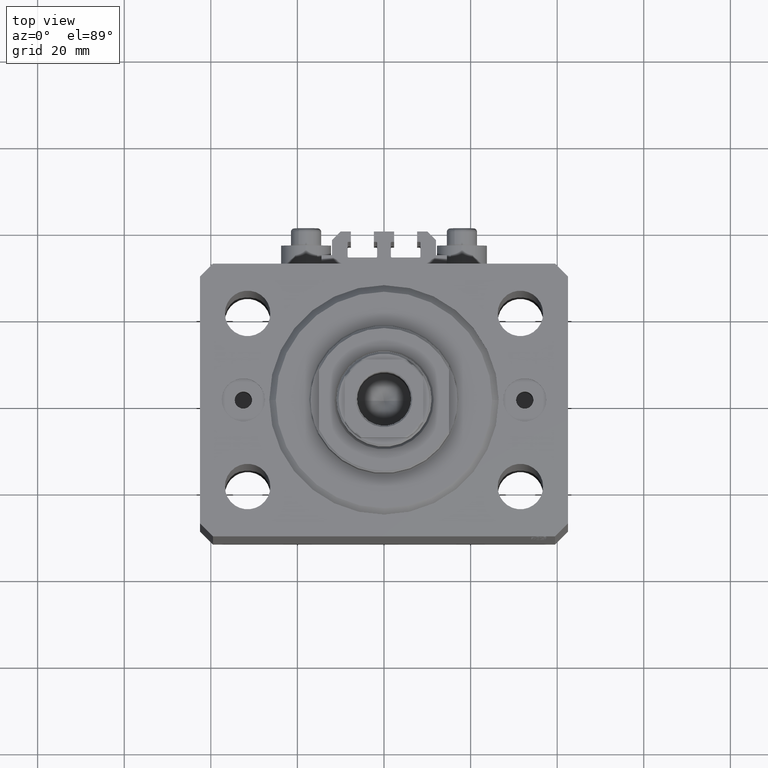
[diagram: clean part render]
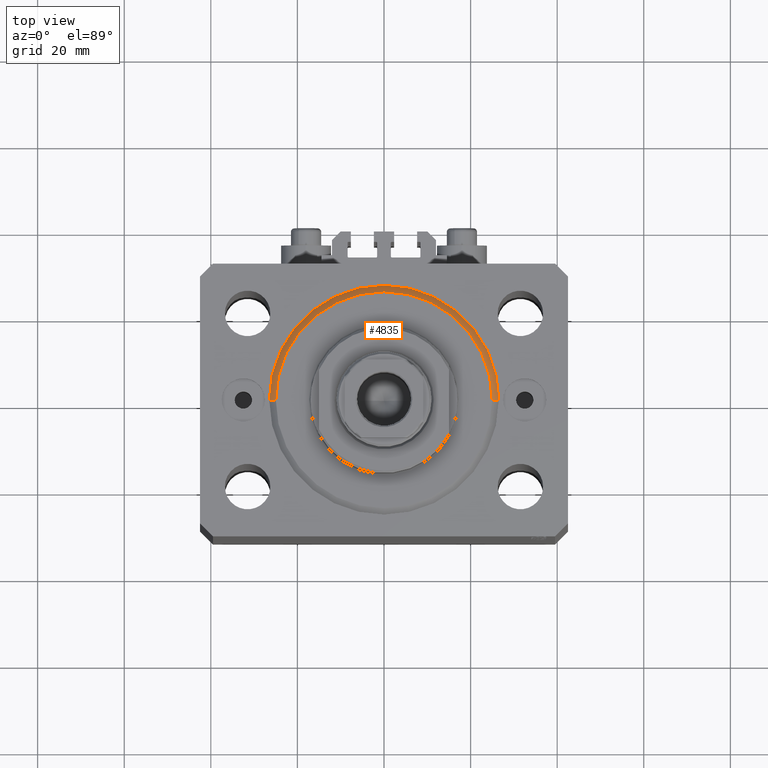
[diagram: same view with one face highlighted and labeled with its STEP entity id]
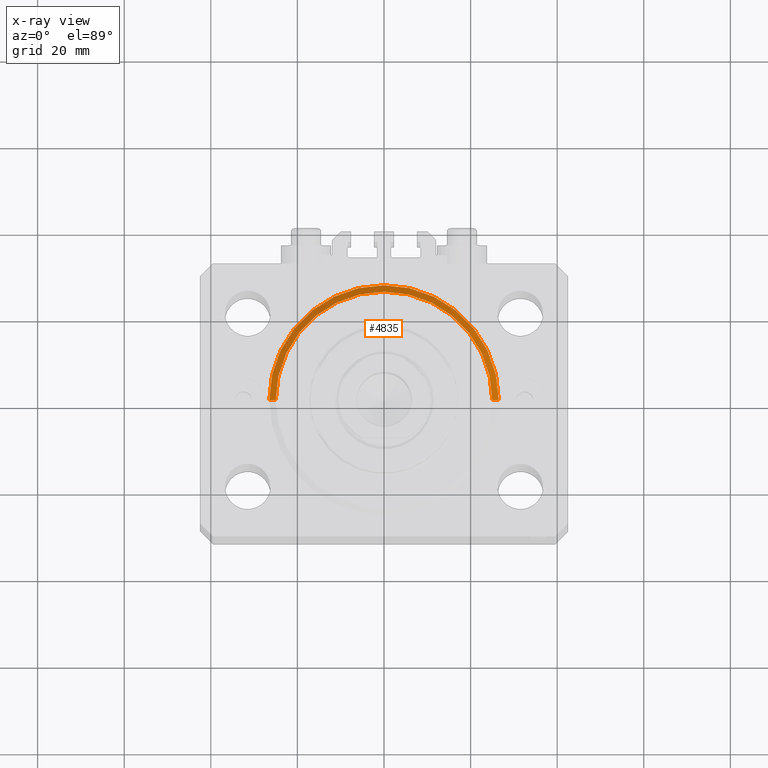
[diagram: x-ray of the same camera — body ghosted, the highlighted face saturated]
A machine part, top view. The second image highlights one B-rep face of the part: STEP entity #4835.
The next image is the same camera in x-ray: the body ghosted, the highlighted face saturated — about 0% of this face is hidden behind the body in this view.
In plain terms, the highlighted conical surface has half-angle 45 deg.
Its self-contained STEP definition (entity closure, byte-faithful):
#2248 = FACE_OUTER_BOUND ( 'NONE', #13559, .T. ) ;
#2373 = CARTESIAN_POINT ( 'NONE',  ( -24.99999999999998224, 3.153465507804433615E-15, 0.000000000000000000 ) ) ;
#3380 = CARTESIAN_POINT ( 'NONE',  ( 24.99999999999998224, 0.000000000000000000, 0.000000000000000000 ) ) ;
#4214 = EDGE_CURVE ( 'NONE', #40217, #22884, #20067, .T. ) ;
#4835 = ADVANCED_FACE ( 'NONE', ( #2248 ), #18758, .T. ) ;
#6417 = DIRECTION ( 'NONE',  ( 1.000000000000000000, 0.000000000000000000, 0.000000000000000000 ) ) ;
#9897 = CARTESIAN_POINT ( 'NONE',  ( 0.000000000000000000, 0.000000000000000000, 1.500000000000018652 ) ) ;
#12173 = CARTESIAN_POINT ( 'NONE',  ( -26.50000000000000355, 0.000000000000000000, 1.500000000000018652 ) ) ;
#12772 = DIRECTION ( 'NONE',  ( 1.000000000000000000, 0.000000000000000000, 0.000000000000000000 ) ) ;
#13436 = VECTOR ( 'NONE', #33475, 1000.000000000000000 ) ;
#13559 = EDGE_LOOP ( 'NONE', ( #23364, #24055, #44298, #34370 ) ) ;
#15716 = AXIS2_PLACEMENT_3D ( 'NONE', #9897, #17312, #12772 ) ;
#17312 = DIRECTION ( 'NONE',  ( -0.000000000000000000, -0.000000000000000000, 1.000000000000000000 ) ) ;
#18473 = VERTEX_POINT ( 'NONE', #12173 ) ;
#18758 = CONICAL_SURFACE ( 'NONE', #15716, 26.50000000000000355, 0.7853981633974495002 ) ;
#19368 = CARTESIAN_POINT ( 'NONE',  ( 26.50000000000000355, 0.000000000000000000, 1.500000000000018652 ) ) ;
#19524 = VERTEX_POINT ( 'NONE', #2373 ) ;
#20039 = CIRCLE ( 'NONE', #21582, 26.50000000000000355 ) ;
#20067 = LINE ( 'NONE', #19368, #31725 ) ;
#21225 = DIRECTION ( 'NONE',  ( -0.000000000000000000, -0.000000000000000000, 1.000000000000000000 ) ) ;
#21582 = AXIS2_PLACEMENT_3D ( 'NONE', #24575, #21225, #6417 ) ;
#22884 = VERTEX_POINT ( 'NONE', #29927 ) ;
#23364 = ORIENTED_EDGE ( 'NONE', *, *, #25260, .F. ) ;
#23835 = CARTESIAN_POINT ( 'NONE',  ( 0.000000000000000000, 0.000000000000000000, 0.000000000000000000 ) ) ;
#24055 = ORIENTED_EDGE ( 'NONE', *, *, #45922, .T. ) ;
#24575 = CARTESIAN_POINT ( 'NONE',  ( 0.000000000000000000, 0.000000000000000000, 1.500000000000018652 ) ) ;
#25260 = EDGE_CURVE ( 'NONE', #19524, #40217, #36586, .T. ) ;
#26782 = CARTESIAN_POINT ( 'NONE',  ( -26.50000000000000355, 3.245314017740486554E-15, 1.500000000000018652 ) ) ;
#28380 = DIRECTION ( 'NONE',  ( -0.000000000000000000, -0.000000000000000000, -1.000000000000000000 ) ) ;
#29927 = CARTESIAN_POINT ( 'NONE',  ( 26.50000000000000355, 3.245314017740486554E-15, 1.500000000000018652 ) ) ;
#31725 = VECTOR ( 'NONE', #38202, 1000.000000000000000 ) ;
#33475 = DIRECTION ( 'NONE',  ( -0.7071067811865483499, 8.659560562354942719E-17, 0.7071067811865466846 ) ) ;
#33552 = AXIS2_PLACEMENT_3D ( 'NONE', #23835, #28380, #35776 ) ;
#34370 = ORIENTED_EDGE ( 'NONE', *, *, #4214, .F. ) ;
#35776 = DIRECTION ( 'NONE',  ( 1.000000000000000000, 0.000000000000000000, 0.000000000000000000 ) ) ;
#36586 = CIRCLE ( 'NONE', #33552, 24.99999999999998224 ) ;
#36725 = EDGE_CURVE ( 'NONE', #22884, #18473, #20039, .T. ) ;
#38202 = DIRECTION ( 'NONE',  ( 0.7071067811865483499, 0.000000000000000000, 0.7071067811865466846 ) ) ;
#40217 = VERTEX_POINT ( 'NONE', #3380 ) ;
#41318 = LINE ( 'NONE', #26782, #13436 ) ;
#44298 = ORIENTED_EDGE ( 'NONE', *, *, #36725, .F. ) ;
#45922 = EDGE_CURVE ( 'NONE', #19524, #18473, #41318, .T. ) ;